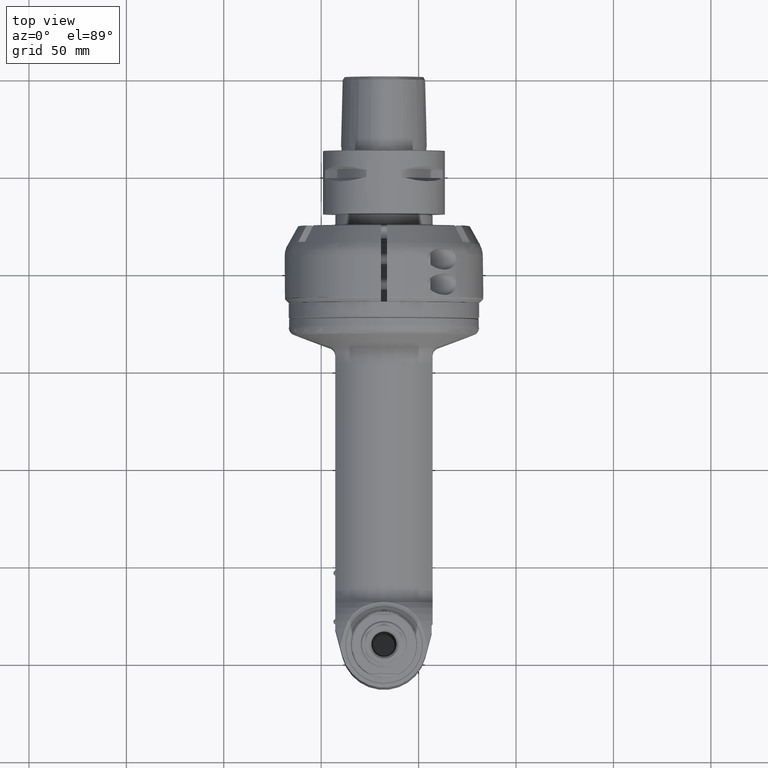
[diagram: clean part render]
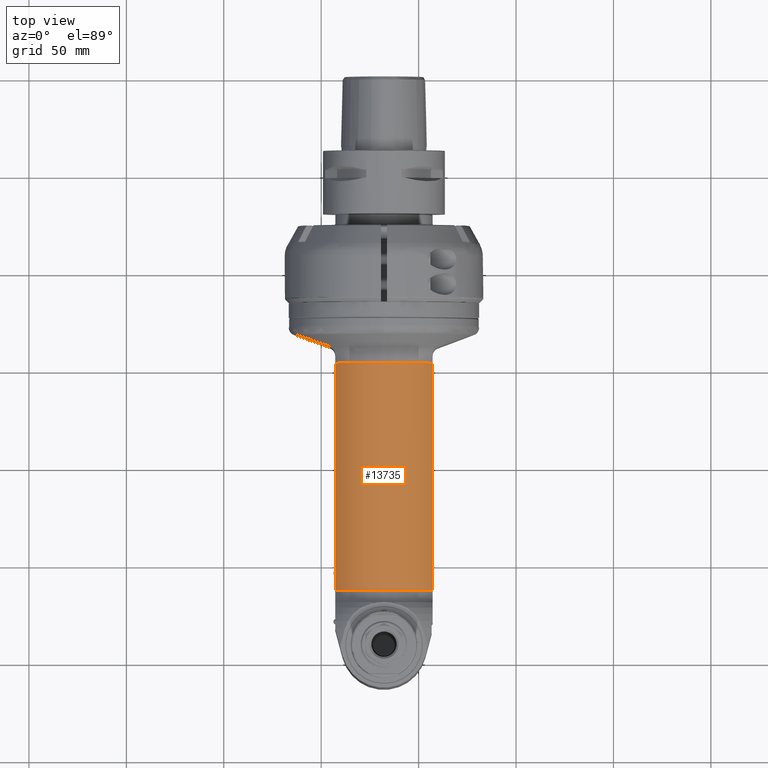
[diagram: same view with one face highlighted and labeled with its STEP entity id]
A machine part, top view. The second image highlights one B-rep face of the part: STEP entity #13735.
In plain terms, the highlighted cylindrical surface (partial cylindrical patch) has radius 30 mm, axis along (0, 1, -0).
Its self-contained STEP definition (entity closure, byte-faithful):
#1162=LINE('',#27322,#2054);
#1170=LINE('',#27506,#2062);
#2054=VECTOR('',#18289,116.7720146362);
#2062=VECTOR('',#18329,116.7720146362);
#2538=CYLINDRICAL_SURFACE('',#15134,30.);
#3627=FACE_OUTER_BOUND('',#4541,.T.);
#4541=EDGE_LOOP('',(#11699,#11700,#11701,#11702));
#5428=CIRCLE('',#15133,30.);
#5429=CIRCLE('',#15135,30.);
#6555=VERTEX_POINT('',#27312);
#6556=VERTEX_POINT('',#27321);
#6585=VERTEX_POINT('',#27483);
#6587=VERTEX_POINT('',#27505);
#8338=EDGE_CURVE('',#6556,#6555,#1162,.T.);
#8372=EDGE_CURVE('',#6585,#6555,#5428,.T.);
#8375=EDGE_CURVE('',#6585,#6587,#1170,.T.);
#8376=EDGE_CURVE('',#6556,#6587,#5429,.T.);
#11699=ORIENTED_EDGE('',*,*,#8372,.F.);
#11700=ORIENTED_EDGE('',*,*,#8375,.T.);
#11701=ORIENTED_EDGE('',*,*,#8376,.F.);
#11702=ORIENTED_EDGE('',*,*,#8338,.T.);
#13735=ADVANCED_FACE('',(#3627),#2538,.T.);
#15133=AXIS2_PLACEMENT_3D('',#27484,#18325,#18326);
#15134=AXIS2_PLACEMENT_3D('',#27504,#18327,#18328);
#15135=AXIS2_PLACEMENT_3D('',#27507,#18330,#18331);
#18289=DIRECTION('',(-1.,0.,0.));
#18325=DIRECTION('center_axis',(-1.,0.,0.));
#18326=DIRECTION('ref_axis',(0.,-0.552770798392605,-0.833333333333308));
#18327=DIRECTION('center_axis',(-1.,0.,0.));
#18328=DIRECTION('ref_axis',(0.,-1.,-1.22464679914735E-16));
#18329=DIRECTION('',(1.,0.,0.));
#18330=DIRECTION('center_axis',(1.,0.,0.));
#18331=DIRECTION('ref_axis',(0.,-1.,0.));
#27312=CARTESIAN_POINT('',(63.16580758197,-16.58312395178,25.));
#27321=CARTESIAN_POINT('',(179.9378222182,-16.58312395178,25.));
#27322=CARTESIAN_POINT('',(179.9378222182,-16.58312395178,25.));
#27483=CARTESIAN_POINT('',(63.16580758197,-16.58312395178,-25.));
#27484=CARTESIAN_POINT('Origin',(63.16580758197,0.,0.));
#27504=CARTESIAN_POINT('Origin',(172.9744646309,0.,0.));
#27505=CARTESIAN_POINT('',(179.9378222182,-16.58312395178,-25.));
#27506=CARTESIAN_POINT('',(63.16580758197,-16.58312395178,-25.));
#27507=CARTESIAN_POINT('Origin',(179.9378222182,0.,0.));